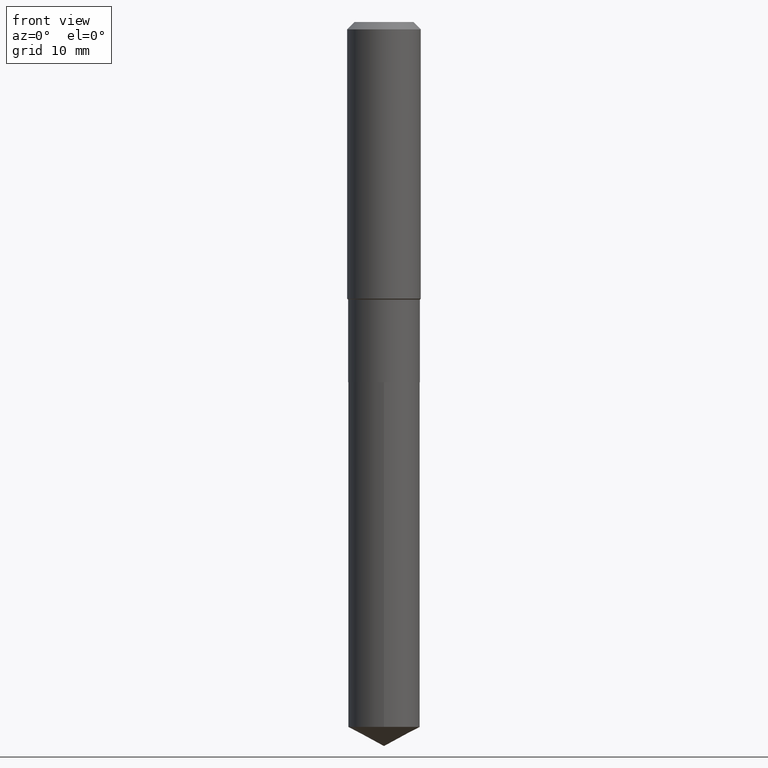
[diagram: clean part render]
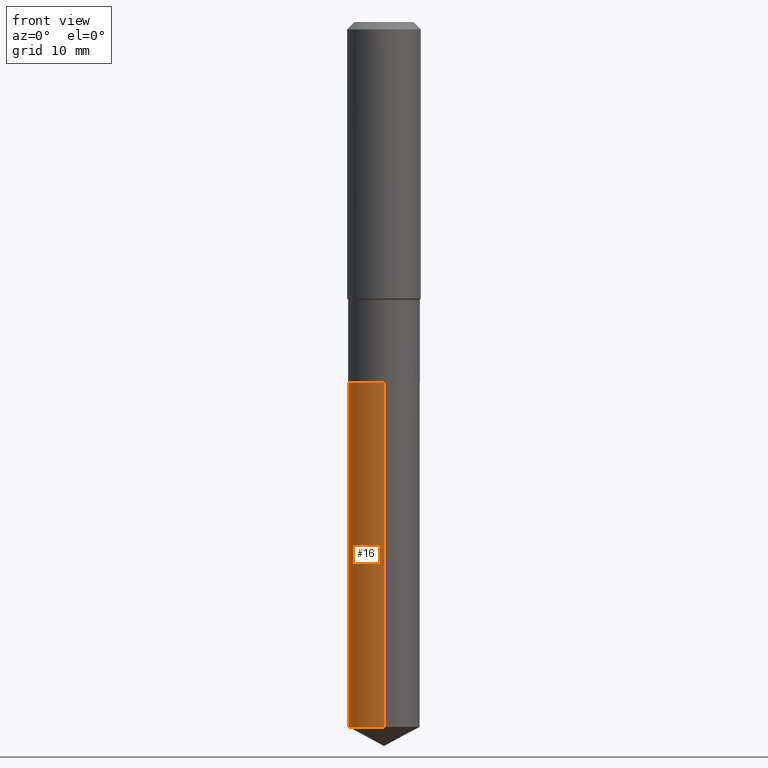
[diagram: same view with one face highlighted and labeled with its STEP entity id]
A machine part, front view. The second image highlights one B-rep face of the part: STEP entity #16.
In plain terms, the highlighted cylindrical surface (edge-blend (fillet) strip) has radius 5.8496 mm, axis along (-0, 0, 1).
Its self-contained STEP definition (entity closure, byte-faithful):
#16 = ADVANCED_FACE ( 'NONE', ( #42 ), #134, .T. ) ;
#22 = CARTESIAN_POINT ( 'NONE',  ( 1.106141765618037244E-28, -1.579289455312474362E-14, -4.523247317888362318 ) ) ;
#28 = DIRECTION ( 'NONE',  ( -2.445449566755685960E-29, 3.491508890801159259E-15, 1.000000000000000000 ) ) ;
#31 = EDGE_CURVE ( 'NONE', #141, #373, #108, .T. ) ;
#42 = FACE_OUTER_BOUND ( 'NONE', #107, .T. ) ;
#44 = EDGE_CURVE ( 'NONE', #220, #373, #112, .T. ) ;
#47 = CARTESIAN_POINT ( 'NONE',  ( 1.636379920455566968E-15, 0.2302999999999919278, -2.311000000000000387 ) ) ;
#72 = CARTESIAN_POINT ( 'NONE',  ( 5.651478411093848855E-29, -8.068813374066508195E-15, -2.310999999999999499 ) ) ;
#81 = VECTOR ( 'NONE', #358, 39.37007874015748143 ) ;
#104 = CARTESIAN_POINT ( 'NONE',  ( 1.636379920455621202E-15, 0.2302999999999842118, -4.523247317888362318 ) ) ;
#107 = EDGE_LOOP ( 'NONE', ( #398, #239, #370, #198 ) ) ;
#108 = LINE ( 'NONE', #114, #298 ) ;
#112 = CIRCLE ( 'NONE', #240, 0.2303000000000000047 ) ;
#114 = CARTESIAN_POINT ( 'NONE',  ( -1.608176304671090468E-15, -0.2303000000000080538, -2.310999999999998611 ) ) ;
#134 = CYLINDRICAL_SURFACE ( 'NONE', #289, 0.2303000000000000047 ) ;
#141 = VERTEX_POINT ( 'NONE', #243 ) ;
#144 = EDGE_CURVE ( 'NONE', #264, #220, #322, .T. ) ;
#163 = DIRECTION ( 'NONE',  ( -2.445449566755685960E-29, 3.491508890801159259E-15, 1.000000000000000000 ) ) ;
#184 = DIRECTION ( 'NONE',  ( -6.982962677686265922E-15, -1.000000000000000000, 2.372425526412734110E-15 ) ) ;
#188 = CARTESIAN_POINT ( 'NONE',  ( -1.608176304671090468E-15, -0.2303000000000080538, -2.310999999999998611 ) ) ;
#198 = ORIENTED_EDGE ( 'NONE', *, *, #44, .F. ) ;
#220 = VERTEX_POINT ( 'NONE', #292 ) ;
#239 = ORIENTED_EDGE ( 'NONE', *, *, #333, .T. ) ;
#240 = AXIS2_PLACEMENT_3D ( 'NONE', #72, #352, #323 ) ;
#243 = CARTESIAN_POINT ( 'NONE',  ( -1.608176304671036628E-15, -0.2303000000000157976, -4.523247317888361430 ) ) ;
#248 = AXIS2_PLACEMENT_3D ( 'NONE', #22, #28, #184 ) ;
#257 = CIRCLE ( 'NONE', #248, 0.2303000000000000047 ) ;
#264 = VERTEX_POINT ( 'NONE', #104 ) ;
#289 = AXIS2_PLACEMENT_3D ( 'NONE', #472, #163, #467 ) ;
#292 = CARTESIAN_POINT ( 'NONE',  ( 1.636379920455621399E-15, 0.2302999999999919001, -2.311000000000000387 ) ) ;
#298 = VECTOR ( 'NONE', #408, 39.37007874015748143 ) ;
#322 = LINE ( 'NONE', #47, #81 ) ;
#323 = DIRECTION ( 'NONE',  ( -6.982962677686265922E-15, -1.000000000000000000, 3.558638289619100968E-15 ) ) ;
#333 = EDGE_CURVE ( 'NONE', #264, #141, #257, .T. ) ;
#352 = DIRECTION ( 'NONE',  ( -2.445449566755685960E-29, 3.491508890801159259E-15, 1.000000000000000000 ) ) ;
#358 = DIRECTION ( 'NONE',  ( -2.445449566755685960E-29, 3.491508890801159654E-15, 1.000000000000000000 ) ) ;
#370 = ORIENTED_EDGE ( 'NONE', *, *, #31, .T. ) ;
#373 = VERTEX_POINT ( 'NONE', #188 ) ;
#398 = ORIENTED_EDGE ( 'NONE', *, *, #144, .F. ) ;
#408 = DIRECTION ( 'NONE',  ( -2.445449566755685960E-29, 3.491508890801159654E-15, 1.000000000000000000 ) ) ;
#467 = DIRECTION ( 'NONE',  ( -6.982962677686265922E-15, -1.000000000000000000, 3.558638289619100968E-15 ) ) ;
#472 = CARTESIAN_POINT ( 'NONE',  ( 5.651478411093848855E-29, -8.068813374066508195E-15, -2.310999999999999499 ) ) ;